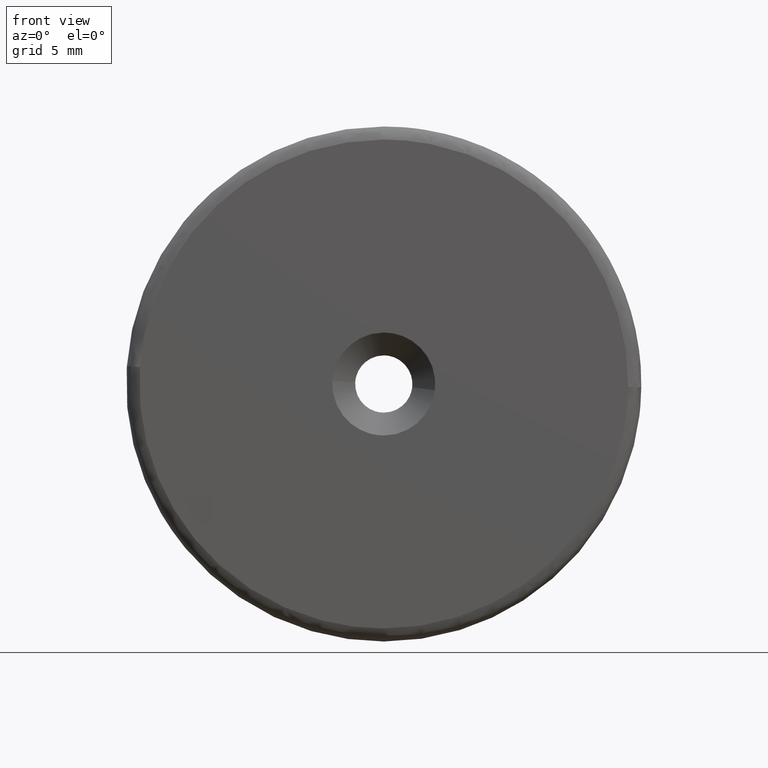
[diagram: clean part render]
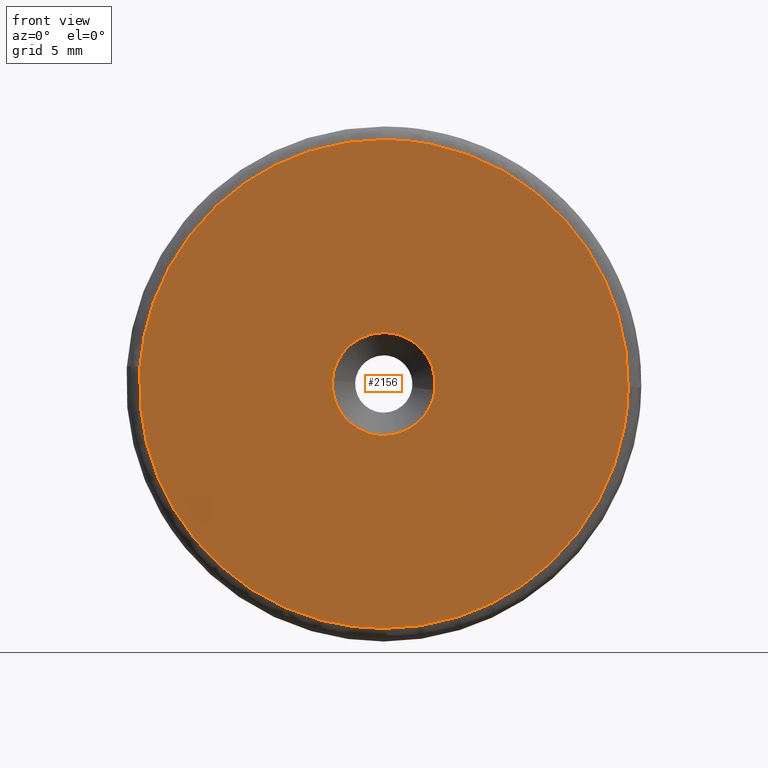
[diagram: same view with one face highlighted and labeled with its STEP entity id]
A machine part, front view. The second image highlights one B-rep face of the part: STEP entity #2156.
In plain terms, the highlighted face is a freeform B-spline surface patch.
Its self-contained STEP definition (entity closure, byte-faithful):
#1645=CARTESIAN_POINT('',(3.127980008046547,-4.300003000008136,-0.371807839240810));
#1646=VERTEX_POINT('',#1645);
#1652=CARTESIAN_POINT('',(0.0,-4.300003000000000,3.150000000000000));
#1653=VERTEX_POINT('',#1652);
#1654=CARTESIAN_POINT('',(3.127980008046547,-4.300003000008136,-0.371807839240810));
#1655=CARTESIAN_POINT('',(3.150000000000000,-4.300003000000000,-0.186555976975167));
#1656=CARTESIAN_POINT('',(3.150000000000000,-4.300003000000000,-5.695187E-016));
#1657=CARTESIAN_POINT('',(3.149999999999999,-4.300002999999999,3.149999999999999));
#1658=CARTESIAN_POINT('',(0.0,-4.300003000000000,3.150000000000000));
#1666=(BOUNDED_CURVE()B_SPLINE_CURVE(2,(#1654,#1655,#1656,#1657,#1658),.UNSPECIFIED.,.F.,.U.)B_SPLINE_CURVE_WITH_KNOTS((3,2,3),(0.229562473507983,0.250000000000000,0.500000000000000),.UNSPECIFIED.)CURVE()GEOMETRIC_REPRESENTATION_ITEM()RATIONAL_B_SPLINE_CURVE((0.956026754172869,0.976055948324672,1.0,0.707106781186548,1.0))REPRESENTATION_ITEM(''));
#1667=EDGE_CURVE('',#1646,#1653,#1666,.T.);
#1669=CARTESIAN_POINT('',(-3.144124615045556,-4.300003000025690,0.192302899753086));
#1670=VERTEX_POINT('',#1669);
#1671=CARTESIAN_POINT('',(0.0,-4.300003000000000,3.150000000000000));
#1672=CARTESIAN_POINT('',(-2.963224110344174,-4.300003000000000,3.150000000000000));
#1673=CARTESIAN_POINT('',(-3.144124615045556,-4.300003000025691,0.192302899753086));
#1681=(BOUNDED_CURVE()B_SPLINE_CURVE(2,(#1671,#1672,#1673),.UNSPECIFIED.,.F.,.U.)B_SPLINE_CURVE_WITH_KNOTS((3,3),(0.500000000000000,0.739332962218211),.UNSPECIFIED.)CURVE()GEOMETRIC_REPRESENTATION_ITEM()RATIONAL_B_SPLINE_CURVE((1.0,0.719603993311000,0.976072041622284))REPRESENTATION_ITEM(''));
#1682=EDGE_CURVE('',#1653,#1670,#1681,.T.);
#1715=CARTESIAN_POINT('',(0.0,-4.300003000000000,-3.150000000000000));
#1716=VERTEX_POINT('',#1715);
#1717=CARTESIAN_POINT('',(-3.144124615045557,-4.300003000025690,0.192302899753086));
#1718=CARTESIAN_POINT('',(-3.150000000000000,-4.300002999999999,0.096241204607619));
#1719=CARTESIAN_POINT('',(-3.150000000000000,-4.300003000000000,-5.695187E-016));
#1720=CARTESIAN_POINT('',(-3.149999999999999,-4.300002999999999,-3.149999999999999));
#1721=CARTESIAN_POINT('',(0.0,-4.300003000000000,-3.150000000000000));
#1729=(BOUNDED_CURVE()B_SPLINE_CURVE(2,(#1717,#1718,#1719,#1720,#1721),.UNSPECIFIED.,.F.,.U.)B_SPLINE_CURVE_WITH_KNOTS((3,2,3),(0.739332962218210,0.750000000000000,1.0),.UNSPECIFIED.)CURVE()GEOMETRIC_REPRESENTATION_ITEM()RATIONAL_B_SPLINE_CURVE((0.976072041622284,0.987502787875548,1.0,0.707106781186548,1.0))REPRESENTATION_ITEM(''));
#1730=EDGE_CURVE('',#1670,#1716,#1729,.T.);
#1732=CARTESIAN_POINT('',(0.0,-4.300003000000000,-3.150000000000000));
#1733=CARTESIAN_POINT('',(2.797749756619083,-4.300003000000000,-3.149999999999999));
#1734=CARTESIAN_POINT('',(3.127980008046546,-4.300003000008136,-0.371807839240810));
#1742=(BOUNDED_CURVE()B_SPLINE_CURVE(2,(#1732,#1733,#1734),.UNSPECIFIED.,.F.,.U.)B_SPLINE_CURVE_WITH_KNOTS((3,3),(0.0,0.229562473507983),.UNSPECIFIED.)CURVE()GEOMETRIC_REPRESENTATION_ITEM()RATIONAL_B_SPLINE_CURVE((1.0,0.731050832861876,0.956026754172869))REPRESENTATION_ITEM(''));
#1743=EDGE_CURVE('',#1716,#1646,#1742,.T.);
#1994=CARTESIAN_POINT('',(-14.913610745914770,-4.299999999999999,1.042512385256142));
#1995=VERTEX_POINT('',#1994);
#1996=CARTESIAN_POINT('',(0.0,-4.300000000000000,-14.950003930186821));
#1997=VERTEX_POINT('',#1996);
#1998=CARTESIAN_POINT('',(-14.913610745914770,-4.299999999999999,1.042512385256142));
#1999=CARTESIAN_POINT('',(-14.950003930186828,-4.300000000000000,0.521891419568283));
#2000=CARTESIAN_POINT('',(-14.950003930186821,-4.300000000000000,-5.695187E-016));
#2001=CARTESIAN_POINT('',(-14.950003930186822,-4.300000000000001,-14.950003930186822));
#2002=CARTESIAN_POINT('',(0.0,-4.300000000000000,-14.950003930186821));
#2010=(BOUNDED_CURVE()B_SPLINE_CURVE(2,(#1998,#1999,#2000,#2001,#2002),.UNSPECIFIED.,.F.,.U.)B_SPLINE_CURVE_WITH_KNOTS((3,2,3),(0.737833686534169,0.750000000000000,1.0),.UNSPECIFIED.)CURVE()GEOMETRIC_REPRESENTATION_ITEM()RATIONAL_B_SPLINE_CURVE((0.972879876385025,0.985746277151598,1.0,0.707106781186548,1.0))REPRESENTATION_ITEM(''));
#2011=EDGE_CURVE('',#1995,#1997,#2010,.T.);
#2030=CARTESIAN_POINT('',(14.948823542158060,-4.299999999999999,-0.187862345709788));
#2031=VERTEX_POINT('',#2030);
#2045=CARTESIAN_POINT('',(0.0,-4.300000000000000,-14.950003930186821));
#2046=CARTESIAN_POINT('',(14.763307233124424,-4.300000000000000,-14.950003930186819));
#2047=CARTESIAN_POINT('',(14.948823542158058,-4.299999999999999,-0.187862345709788));
#2055=(BOUNDED_CURVE()B_SPLINE_CURVE(2,(#2045,#2046,#2047),.UNSPECIFIED.,.F.,.U.)B_SPLINE_CURVE_WITH_KNOTS((3,3),(0.0,0.247784295920581),.UNSPECIFIED.)CURVE()GEOMETRIC_REPRESENTATION_ITEM()RATIONAL_B_SPLINE_CURVE((1.0,0.709702639985584,0.994854295641372))REPRESENTATION_ITEM(''));
#2056=EDGE_CURVE('',#1997,#2031,#2055,.T.);
#2084=CARTESIAN_POINT('',(0.0,-4.300000000000000,14.950003930186821));
#2085=VERTEX_POINT('',#2084);
#2086=CARTESIAN_POINT('',(0.0,-4.300000000000000,14.950003930186821));
#2087=CARTESIAN_POINT('',(-13.941429531601624,-4.300000000000001,14.950003930186815));
#2088=CARTESIAN_POINT('',(-14.913610745914770,-4.299999999999999,1.042512385256141));
#2096=(BOUNDED_CURVE()B_SPLINE_CURVE(2,(#2086,#2087,#2088),.UNSPECIFIED.,.F.,.U.)B_SPLINE_CURVE_WITH_KNOTS((3,3),(0.500000000000000,0.737833686534170),.UNSPECIFIED.)CURVE()GEOMETRIC_REPRESENTATION_ITEM()RATIONAL_B_SPLINE_CURVE((1.0,0.721360504034949,0.972879876385027))REPRESENTATION_ITEM(''));
#2097=EDGE_CURVE('',#2085,#1995,#2096,.T.);
#2099=CARTESIAN_POINT('',(14.948823542158058,-4.299999999999999,-0.187862345709788));
#2100=CARTESIAN_POINT('',(14.950003930186822,-4.300000000000000,-0.093934881221922));
#2101=CARTESIAN_POINT('',(14.950003930186821,-4.300000000000000,-5.695187E-016));
#2102=CARTESIAN_POINT('',(14.950003930186822,-4.300000000000001,14.950003930186822));
#2103=CARTESIAN_POINT('',(0.0,-4.300000000000000,14.950003930186821));
#2111=(BOUNDED_CURVE()B_SPLINE_CURVE(2,(#2099,#2100,#2101,#2102,#2103),.UNSPECIFIED.,.F.,.U.)B_SPLINE_CURVE_WITH_KNOTS((3,2,3),(0.247784295920581,0.250000000000000,0.500000000000000),.UNSPECIFIED.)CURVE()GEOMETRIC_REPRESENTATION_ITEM()RATIONAL_B_SPLINE_CURVE((0.994854295641372,0.997404141200964,1.0,0.707106781186548,1.0))REPRESENTATION_ITEM(''));
#2112=EDGE_CURVE('',#2031,#2085,#2111,.T.);
#2139=CARTESIAN_POINT('',(-16.441660801139090,-4.300001500000020,-16.443508984180589));
#2140=CARTESIAN_POINT('',(-16.441660801139090,-4.300001500000020,16.443510053488190));
#2141=CARTESIAN_POINT('',(16.442185585088680,-4.300001500000020,-16.443508984180589));
#2142=CARTESIAN_POINT('',(16.442185585088680,-4.300001500000020,16.443510053488190));
#2143=B_SPLINE_SURFACE_WITH_KNOTS('',1,1,((#2139,#2141),(#2140,#2142)),.UNSPECIFIED.,.F.,.F.,.U.,(2,2),(2,2),(0.0,32.887019037668779),(0.0,32.883846386227773),.UNSPECIFIED.);
#2144=ORIENTED_EDGE('',*,*,#2056,.T.);
#2145=ORIENTED_EDGE('',*,*,#2112,.T.);
#2146=ORIENTED_EDGE('',*,*,#2097,.T.);
#2147=ORIENTED_EDGE('',*,*,#2011,.T.);
#2148=EDGE_LOOP('',(#2144,#2145,#2146,#2147));
#2149=FACE_OUTER_BOUND('',#2148,.T.);
#2150=ORIENTED_EDGE('',*,*,#1682,.F.);
#2151=ORIENTED_EDGE('',*,*,#1667,.F.);
#2152=ORIENTED_EDGE('',*,*,#1743,.F.);
#2153=ORIENTED_EDGE('',*,*,#1730,.F.);
#2154=EDGE_LOOP('',(#2150,#2151,#2152,#2153));
#2155=FACE_BOUND('',#2154,.T.);
#2156=ADVANCED_FACE('',(#2149,#2155),#2143,.F.);